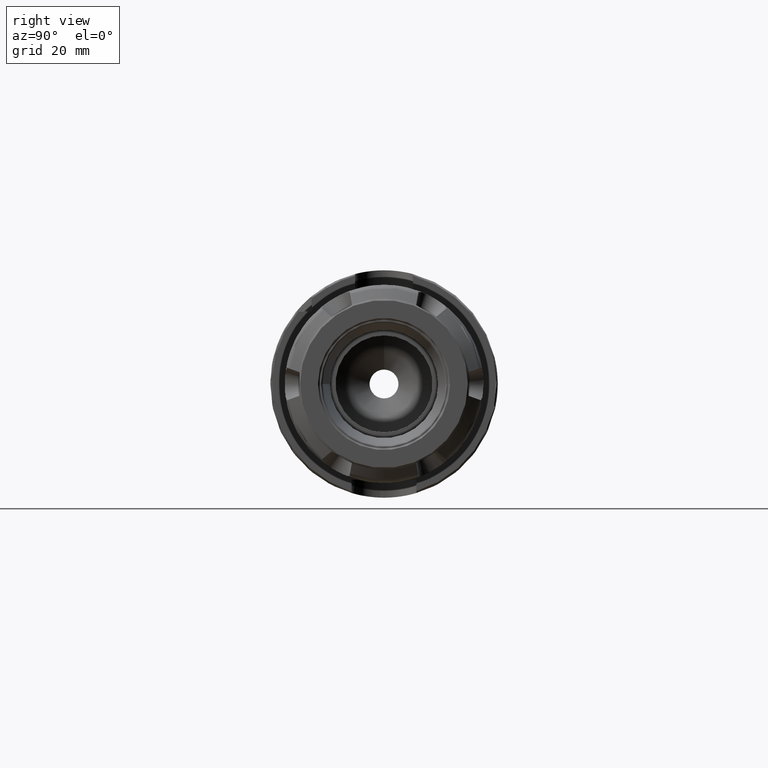
[diagram: clean part render]
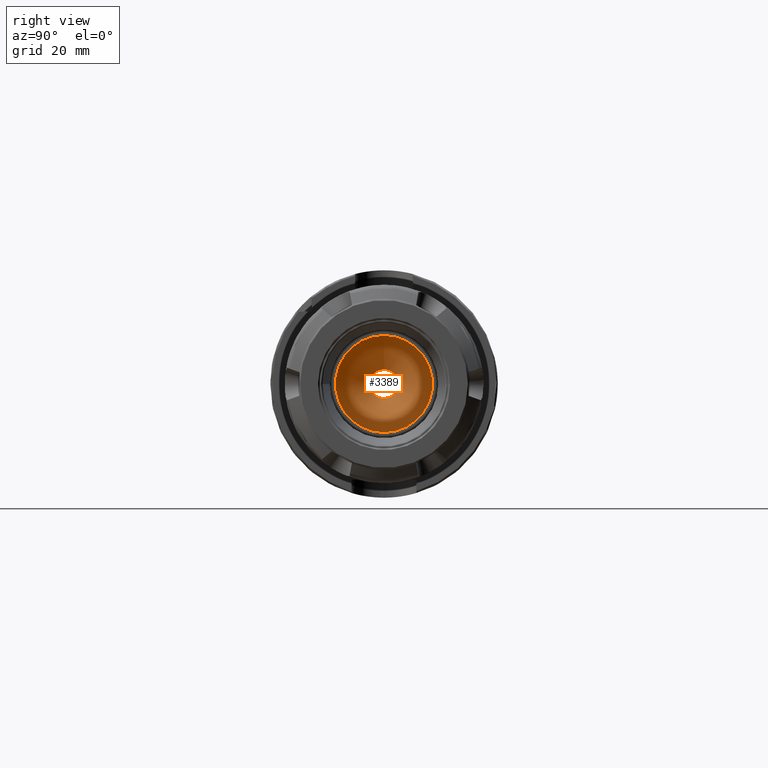
[diagram: same view with one face highlighted and labeled with its STEP entity id]
A machine part, right view. The second image highlights one B-rep face of the part: STEP entity #3389.
In plain terms, the highlighted conical surface has half-angle 59 deg.
Its self-contained STEP definition (entity closure, byte-faithful):
#363=FACE_OUTER_BOUND('',#568,.T.);
#568=EDGE_LOOP('',(#2250,#2251,#2252,#2253,#2254));
#789=LINE('',#5134,#957);
#957=VECTOR('',#4100,6.71195);
#1125=CIRCLE('',#3661,13.4239);
#1126=CIRCLE('',#3662,4.);
#1127=CIRCLE('',#3663,4.);
#1347=VERTEX_POINT('',#5131);
#1348=VERTEX_POINT('',#5133);
#1349=VERTEX_POINT('',#5135);
#1702=EDGE_CURVE('',#1347,#1347,#1125,.T.);
#1703=EDGE_CURVE('',#1347,#1348,#789,.T.);
#1704=EDGE_CURVE('',#1349,#1348,#1126,.T.);
#1705=EDGE_CURVE('',#1348,#1349,#1127,.T.);
#2250=ORIENTED_EDGE('',*,*,#1702,.T.);
#2251=ORIENTED_EDGE('',*,*,#1703,.T.);
#2252=ORIENTED_EDGE('',*,*,#1704,.F.);
#2253=ORIENTED_EDGE('',*,*,#1705,.F.);
#2254=ORIENTED_EDGE('',*,*,#1703,.F.);
#3346=CONICAL_SURFACE('',#3660,6.71195,1.02974425867665);
#3389=ADVANCED_FACE('',(#363),#3346,.F.);
#3660=AXIS2_PLACEMENT_3D('',#5130,#4096,#4097);
#3661=AXIS2_PLACEMENT_3D('',#5132,#4098,#4099);
#3662=AXIS2_PLACEMENT_3D('',#5136,#4101,#4102);
#3663=AXIS2_PLACEMENT_3D('',#5137,#4103,#4104);
#4096=DIRECTION('center_axis',(1.,0.,0.));
#4097=DIRECTION('ref_axis',(0.,0.,-1.));
#4098=DIRECTION('center_axis',(1.,0.,0.));
#4099=DIRECTION('ref_axis',(0.,0.,-1.));
#4100=DIRECTION('',(-0.515038074910054,1.04972719113862E-16,-0.857167300702112));
#4101=DIRECTION('center_axis',(1.,0.,0.));
#4102=DIRECTION('ref_axis',(0.,0.,1.));
#4103=DIRECTION('center_axis',(1.,0.,0.));
#4104=DIRECTION('ref_axis',(0.,0.,1.));
#5130=CARTESIAN_POINT('Origin',(37.567053568118,0.,0.));
#5131=CARTESIAN_POINT('',(41.6,-1.64395361670742E-15,13.4239));
#5132=CARTESIAN_POINT('Origin',(41.6,0.,0.));
#5133=CARTESIAN_POINT('',(35.9375496123462,-4.89858719658943E-16,4.00000000000001));
#5134=CARTESIAN_POINT('',(37.567053568118,-8.21976808353708E-16,6.71195));
#5135=CARTESIAN_POINT('',(35.9375496123462,4.89858719658941E-16,-4.));
#5136=CARTESIAN_POINT('Origin',(35.9375496123462,0.,0.));
#5137=CARTESIAN_POINT('Origin',(35.9375496123462,0.,0.));